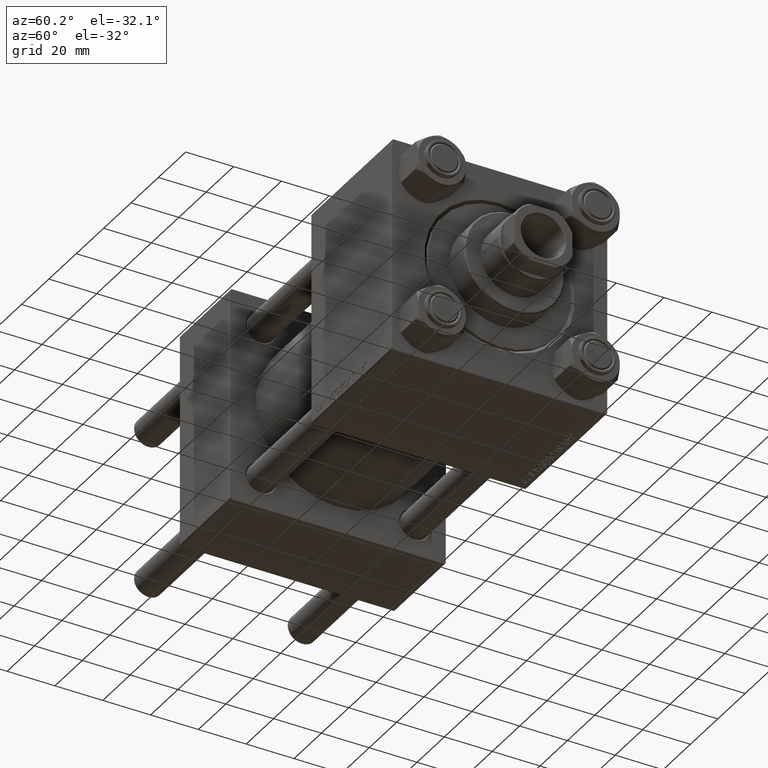
[diagram: clean part render]
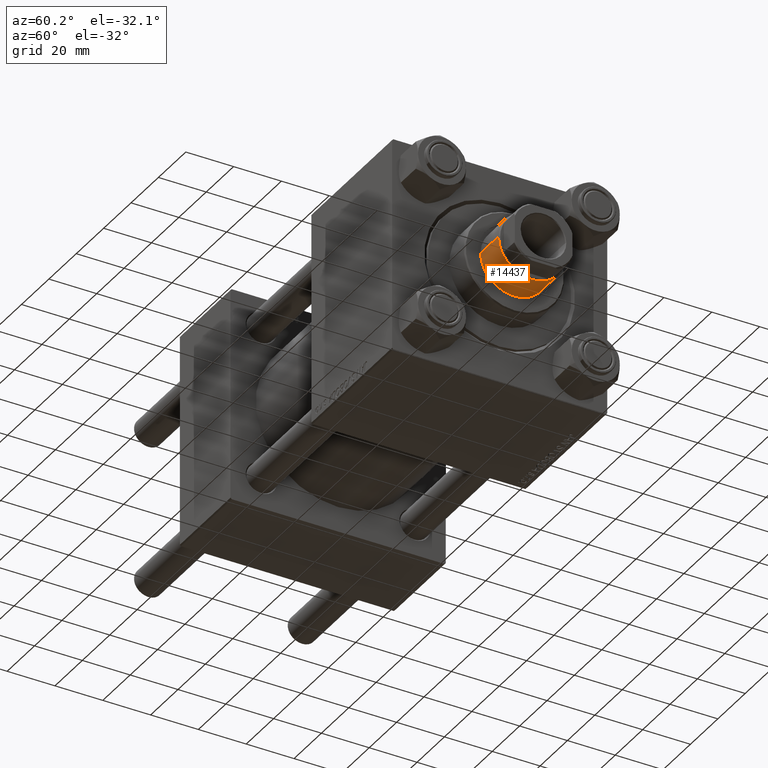
[diagram: same view with one face highlighted and labeled with its STEP entity id]
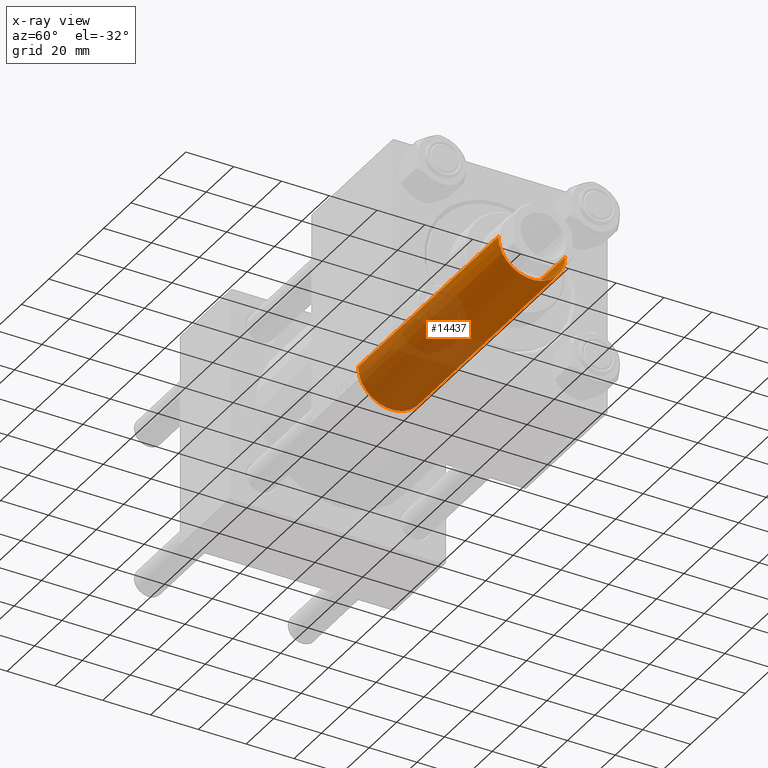
[diagram: x-ray of the same camera — body ghosted, the highlighted face saturated]
A machine part, auxiliary view. The second image highlights one B-rep face of the part: STEP entity #14437.
The next image is the same camera in x-ray: the body ghosted, the highlighted face saturated — about 61% of this face is hidden behind the body in this view.
In plain terms, the highlighted cylindrical surface (partial cylindrical patch) has radius 14 mm, axis along (-1, 0, 0).
Its self-contained STEP definition (entity closure, byte-faithful):
#1309 = VERTEX_POINT ( 'NONE', #16439 ) ;
#1986 = DIRECTION ( 'NONE',  ( 0.000000000000000000, 0.000000000000000000, -1.000000000000000000 ) ) ;
#3787 = VECTOR ( 'NONE', #27652, 1000.000000000000000 ) ;
#5203 = AXIS2_PLACEMENT_3D ( 'NONE', #26769, #11655, #42358 ) ;
#7558 = VECTOR ( 'NONE', #44808, 1000.000000000000000 ) ;
#7624 = FACE_OUTER_BOUND ( 'NONE', #41226, .T. ) ;
#8417 = EDGE_CURVE ( 'NONE', #32097, #1309, #31669, .T. ) ;
#11465 = CARTESIAN_POINT ( 'NONE',  ( -14.00000000000000178, 0.000000000000000000, 141.5000000000000000 ) ) ;
#11655 = DIRECTION ( 'NONE',  ( -0.000000000000000000, -0.000000000000000000, -1.000000000000000000 ) ) ;
#12088 = DIRECTION ( 'NONE',  ( 1.000000000000000000, 0.000000000000000000, 0.000000000000000000 ) ) ;
#12286 = CARTESIAN_POINT ( 'NONE',  ( 14.00000000000000178, 1.714505518806294835E-15, 142.0000000000000000 ) ) ;
#14437 = ADVANCED_FACE ( 'NONE', ( #7624 ), #35094, .T. ) ;
#16439 = CARTESIAN_POINT ( 'NONE',  ( -14.00000000000000178, 0.000000000000000000, 39.00000000000000000 ) ) ;
#16667 = CIRCLE ( 'NONE', #36778, 14.00000000000000178 ) ;
#19387 = CARTESIAN_POINT ( 'NONE',  ( 0.000000000000000000, 0.000000000000000000, 39.00000000000000000 ) ) ;
#22045 = ORIENTED_EDGE ( 'NONE', *, *, #8417, .T. ) ;
#24940 = EDGE_CURVE ( 'NONE', #26906, #39119, #16667, .T. ) ;
#25096 = EDGE_CURVE ( 'NONE', #39119, #32097, #30931, .T. ) ;
#26769 = CARTESIAN_POINT ( 'NONE',  ( 0.000000000000000000, 0.000000000000000000, 142.0000000000000000 ) ) ;
#26906 = VERTEX_POINT ( 'NONE', #11465 ) ;
#27652 = DIRECTION ( 'NONE',  ( -0.000000000000000000, -0.000000000000000000, -1.000000000000000000 ) ) ;
#28200 = DIRECTION ( 'NONE',  ( 1.000000000000000000, 0.000000000000000000, 0.000000000000000000 ) ) ;
#28445 = CARTESIAN_POINT ( 'NONE',  ( 0.000000000000000000, 0.000000000000000000, 141.5000000000000000 ) ) ;
#29478 = CARTESIAN_POINT ( 'NONE',  ( -14.00000000000000178, 0.000000000000000000, 142.0000000000000000 ) ) ;
#29974 = LINE ( 'NONE', #29478, #7558 ) ;
#30362 = ORIENTED_EDGE ( 'NONE', *, *, #24940, .T. ) ;
#30931 = LINE ( 'NONE', #12286, #3787 ) ;
#31669 = CIRCLE ( 'NONE', #32494, 14.00000000000000178 ) ;
#32023 = EDGE_CURVE ( 'NONE', #26906, #1309, #29974, .T. ) ;
#32097 = VERTEX_POINT ( 'NONE', #49322 ) ;
#32494 = AXIS2_PLACEMENT_3D ( 'NONE', #19387, #42275, #12088 ) ;
#33040 = CARTESIAN_POINT ( 'NONE',  ( 14.00000000000000178, 1.714505518806294835E-15, 141.5000000000000000 ) ) ;
#35094 = CYLINDRICAL_SURFACE ( 'NONE', #5203, 14.00000000000000178 ) ;
#36778 = AXIS2_PLACEMENT_3D ( 'NONE', #28445, #1986, #28200 ) ;
#36828 = ORIENTED_EDGE ( 'NONE', *, *, #32023, .F. ) ;
#39119 = VERTEX_POINT ( 'NONE', #33040 ) ;
#41226 = EDGE_LOOP ( 'NONE', ( #30362, #49096, #22045, #36828 ) ) ;
#42275 = DIRECTION ( 'NONE',  ( 0.000000000000000000, 0.000000000000000000, 1.000000000000000000 ) ) ;
#42358 = DIRECTION ( 'NONE',  ( -1.000000000000000000, 0.000000000000000000, 0.000000000000000000 ) ) ;
#44808 = DIRECTION ( 'NONE',  ( -0.000000000000000000, -0.000000000000000000, -1.000000000000000000 ) ) ;
#49096 = ORIENTED_EDGE ( 'NONE', *, *, #25096, .T. ) ;
#49322 = CARTESIAN_POINT ( 'NONE',  ( 14.00000000000000178, 1.714505518806294835E-15, 39.00000000000000000 ) ) ;